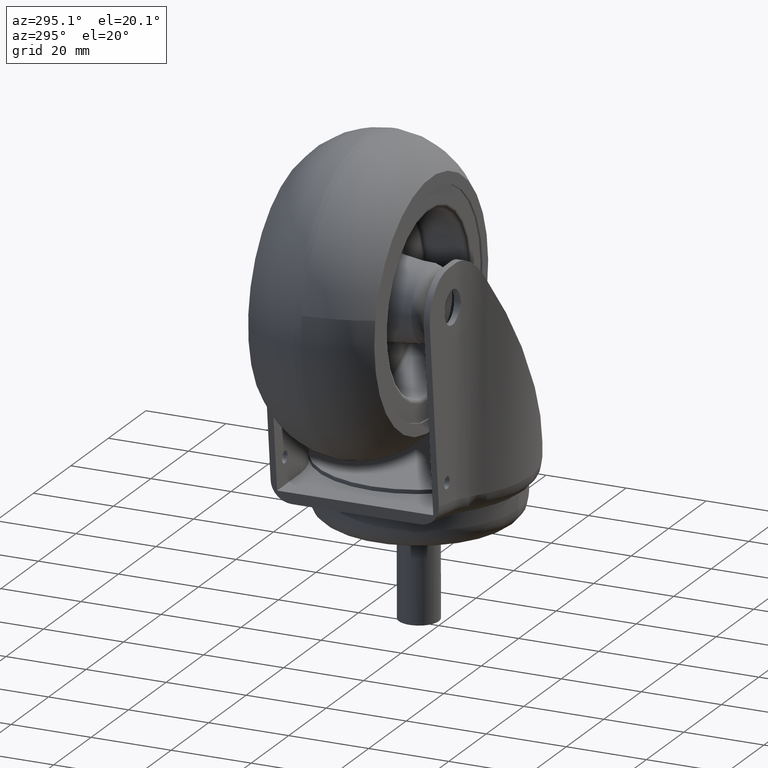
[diagram: clean part render]
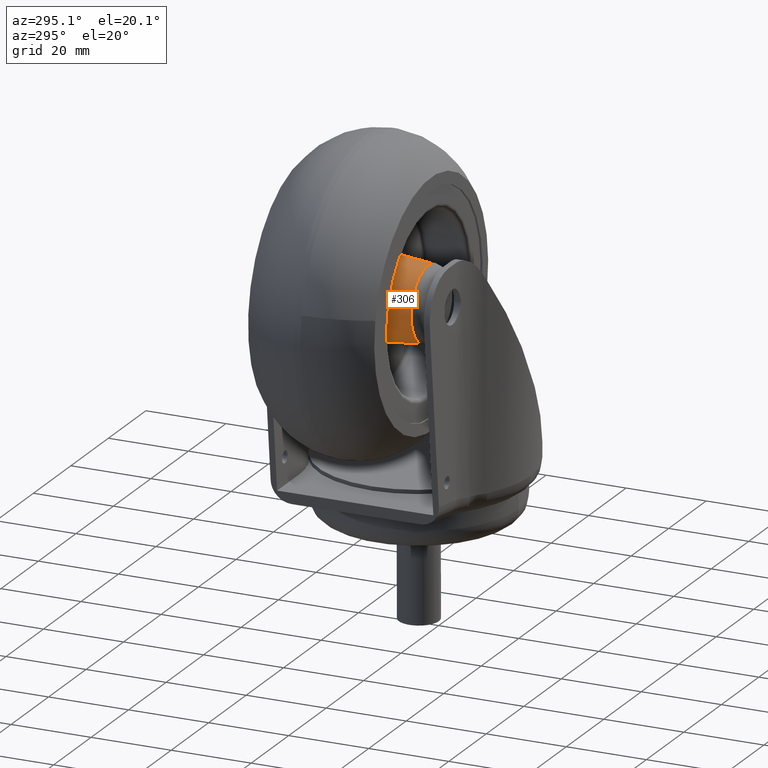
[diagram: same view with one face highlighted and labeled with its STEP entity id]
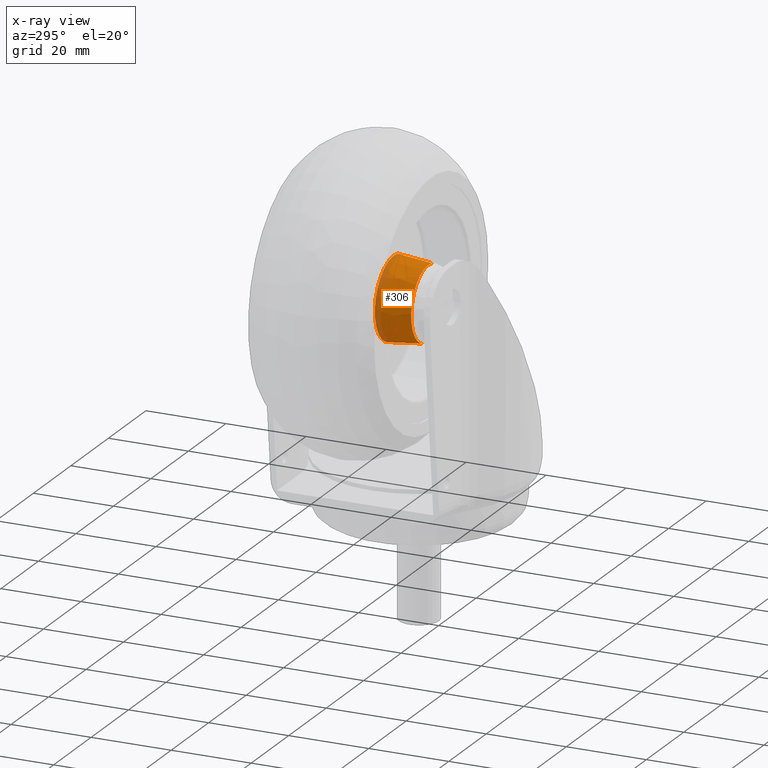
[diagram: x-ray of the same camera — body ghosted, the highlighted face saturated]
A machine part, auxiliary view. The second image highlights one B-rep face of the part: STEP entity #306.
The next image is the same camera in x-ray: the body ghosted, the highlighted face saturated — about 18% of this face is hidden behind the body in this view.
In plain terms, the highlighted conical surface has half-angle 6.116 deg.
Its self-contained STEP definition (entity closure, byte-faithful):
#66 = VERTEX_POINT ( 'NONE', #1190 ) ;
#86 = VERTEX_POINT ( 'NONE', #1251 ) ;
#269 = EDGE_CURVE ( 'NONE', #86, #66, #1944, .T. ) ;
#306 = ADVANCED_FACE ( 'NONE', ( #2166 ), #2163, .T. ) ;
#307 = EDGE_LOOP ( 'NONE', ( #308, #309, #310, #311 ) ) ;
#308 = ORIENTED_EDGE ( 'NONE', *, *, #4381, .F. ) ;
#309 = ORIENTED_EDGE ( 'NONE', *, *, #269, .F. ) ;
#310 = ORIENTED_EDGE ( 'NONE', *, *, #4372, .T. ) ;
#311 = ORIENTED_EDGE ( 'NONE', *, *, #312, .T. ) ;
#312 = EDGE_CURVE ( 'NONE', #4383, #4379, #2159, .T. ) ;
#1190 = CARTESIAN_POINT ( 'NONE',  ( -9.287185781999996300, -2.857250467720554200E-009, 0.6804006289999916500 ) ) ;
#1251 = CARTESIAN_POINT ( 'NONE',  ( 9.287185781999998100, -4.169650546287601600E-010, 0.6804006289999916500 ) ) ;
#1940 = DIRECTION ( 'NONE',  ( 1.000000000000000000, 0.0000000000000000000, 1.237462380759161000E-015 ) ) ;
#1941 = DIRECTION ( 'NONE',  ( -0.0000000000000000000, -0.0000000000000000000, -1.000000000000000000 ) ) ;
#1942 = CARTESIAN_POINT ( 'NONE',  ( 0.0000000000000000000, 0.0000000000000000000, 0.6804006289999886500 ) ) ;
#1943 = AXIS2_PLACEMENT_3D ( 'NONE', #1942, #1941, #1940 ) ;
#1944 = CIRCLE ( 'NONE', #1943, 9.287185781999996300 ) ;
#2156 = DIRECTION ( 'NONE',  ( -1.000000000000000000, 0.0000000000000000000, 0.0000000000000000000 ) ) ;
#2157 = DIRECTION ( 'NONE',  ( -0.0000000000000000000, -0.0000000000000000000, -1.000000000000000000 ) ) ;
#2158 = AXIS2_PLACEMENT_3D ( 'NONE', #2164, #2157, #2156 ) ;
#2159 = CIRCLE ( 'NONE', #2158, 10.21281421800000200 ) ;
#2160 = DIRECTION ( 'NONE',  ( 1.000000000000000000, 0.0000000000000000000, 0.0000000000000000000 ) ) ;
#2161 = DIRECTION ( 'NONE',  ( 0.0000000000000000000, -0.0000000000000000000, 1.000000000000000000 ) ) ;
#2162 = AXIS2_PLACEMENT_3D ( 'NONE', #2165, #2161, #2160 ) ;
#2163 = CONICAL_SURFACE ( 'NONE', #2162, 9.287185781999998100, 0.1067356725755690100 ) ;
#2164 = CARTESIAN_POINT ( 'NONE',  ( 0.0000000000000000000, 0.0000000000000000000, 9.319599371000002500 ) ) ;
#2165 = CARTESIAN_POINT ( 'NONE',  ( 0.0000000000000000000, 0.0000000000000000000, 0.6804006290000002000 ) ) ;
#2166 = FACE_OUTER_BOUND ( 'NONE', #307, .T. ) ;
#3642 = VECTOR ( 'NONE', #3697, 1000.000000000000100 ) ;
#3643 = CARTESIAN_POINT ( 'NONE',  ( 9.287185781999998100, 0.0000000000000000000, 0.6804006290000002000 ) ) ;
#3644 = LINE ( 'NONE', #3643, #3642 ) ;
#3677 = DIRECTION ( 'NONE',  ( -0.1065331235611172600, 1.304611400054886000E-017, 0.9943091539276461800 ) ) ;
#3678 = VECTOR ( 'NONE', #3677, 1000.000000000000100 ) ;
#3679 = CARTESIAN_POINT ( 'NONE',  ( -9.287185781999998100, 1.137314671776604200E-015, 0.6804006290000002000 ) ) ;
#3680 = LINE ( 'NONE', #3679, #3678 ) ;
#3686 = CARTESIAN_POINT ( 'NONE',  ( -10.21281421800000200, -1.047341605450960500E-009, 9.319599371000002500 ) ) ;
#3697 = DIRECTION ( 'NONE',  ( 0.1065331235611172600, 0.0000000000000000000, 0.9943091539276461800 ) ) ;
#3722 = CARTESIAN_POINT ( 'NONE',  ( 10.21281421800000200, 0.0000000000000000000, 9.319599371000006000 ) ) ;
#4372 = EDGE_CURVE ( 'NONE', #86, #4383, #3644, .T. ) ;
#4379 = VERTEX_POINT ( 'NONE', #3686 ) ;
#4381 = EDGE_CURVE ( 'NONE', #66, #4379, #3680, .T. ) ;
#4383 = VERTEX_POINT ( 'NONE', #3722 ) ;